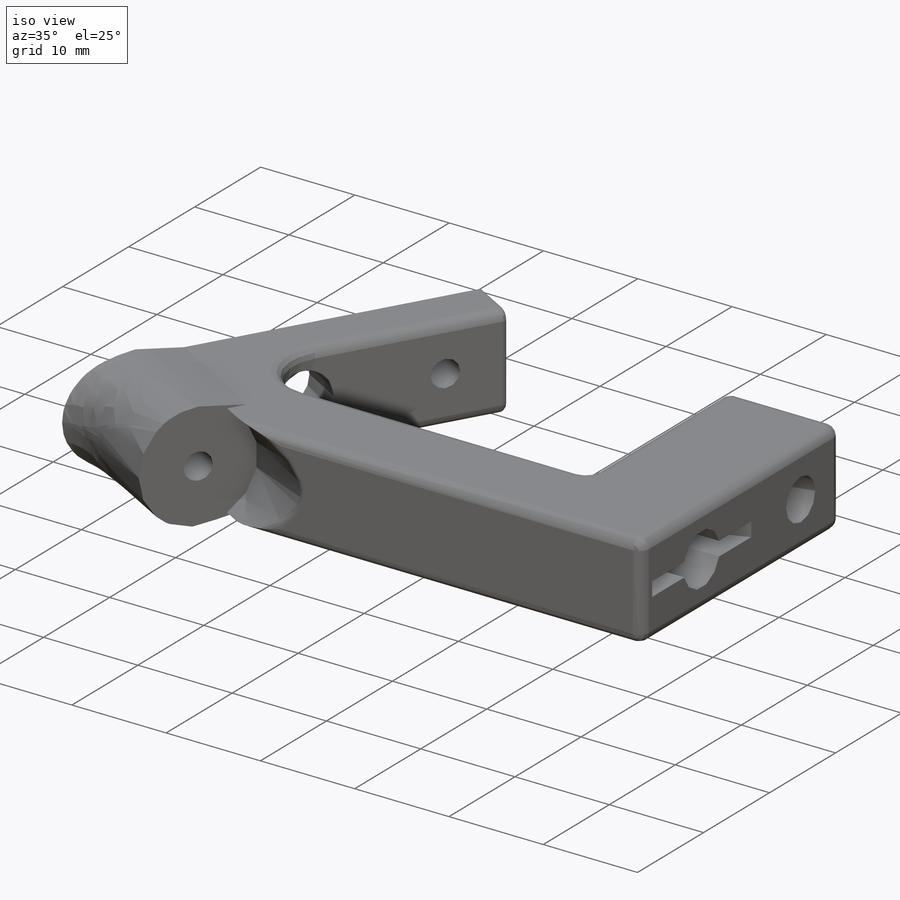
[diagram: iso view]
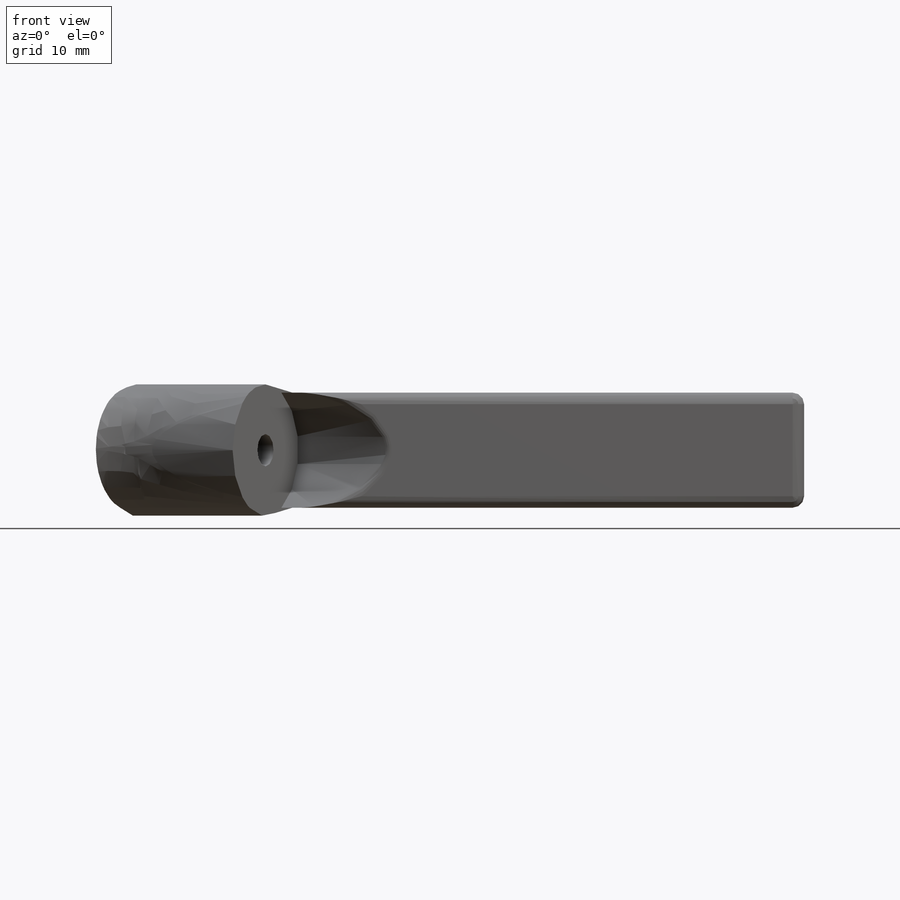
[diagram: front view]
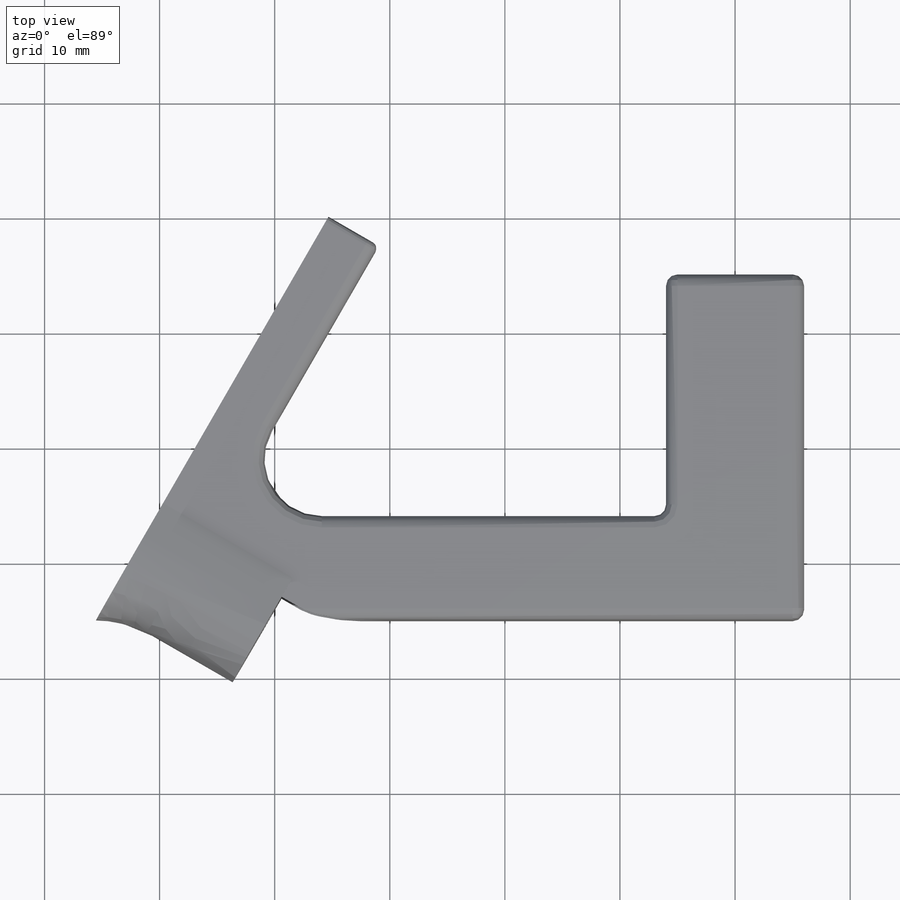
[diagram: top view]
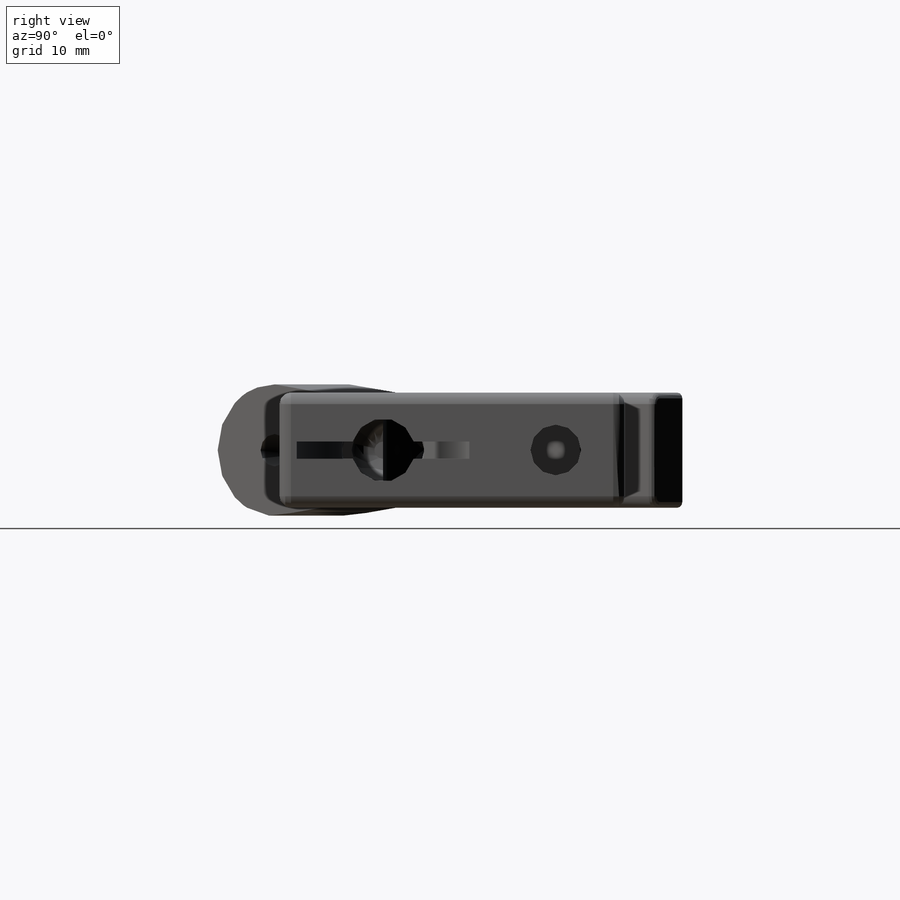
[diagram: right view]
SOLIDWORKS PART (.sldprt)
format: sldprt  version: not decoded by parser v0  size: 558,592 bytes
history: native  units: mm
features: sketch x11, fillet x8, cut_extrude x6, extrude x2, material x1, plane x1 (+12 scaffold rows collapsed)
feature tree (41):
  scaffold x12  (default folders/planes/origin — collapsed)
  material  "Material <not specified>"
  sketch  "Sketch1"  dims[c1.D1=12.0mm c1.D2=30.0mm c1.D3=~21.510476mm c2.D3=30.0deg c2.D4=5.0mm c2.D5=25.0mm c2.D6=9.0mm c3.D5=5.0mm c3.D7=25.0mm]
  extrude  "Boss-Extrude1"  Depth=10mm
  sketch  "Sketch2"  dims[D1=2.81mm D2=7.0mm D3=6.0mm]
  cut_extrude  "Cut-Extrude1"  [1 undecoded]
  sketch  "Sketch3"  dims[D1=6.0mm D2=18.0mm D3=6.0mm]
  cut_extrude  "Cut-Extrude2"  [1 undecoded]
  sketch  "Sketch4"  dims[D1=8.89mm]
  plane  "Plane1"
  sketch  "Sketch5"  dims[D1=11.43mm]
  cut_extrude  "Cut-Extrude3"  Depth=3mm
  sketch  "Sketch6"
  extrude  "Boss-Extrude3"  [1 undecoded]
  fillet  "Fillet1"  Radius=10mm
  fillet  "Fillet2"  Radius=5mm
  fillet  "Fillet4"  Radius=1mm
  fillet  "Fillet7"  Radius=1mm
  fillet  "Fillet11"  Radius=0.5mm
  sketch  "Sketch7"  dims[D1=4.4mm D2=5.5mm D3=15.0mm D4=8.0mm]
  cut_extrude  "Cut-Extrude4"  Depth=25mm
  sketch  "Sketch8"  dims[D1=6.0mm D2=6.0mm]
  cut_extrude  "Cut-Extrude5"  Depth=8mm
  fillet  "Fillet14"  Radius=0.25mm
  fillet  "Fillet15"  Radius=2mm
  fillet  "Fillet17"  Radius=3mm
  sketch  "Sketch9"  dims[D1=1.5mm D2=15.0mm]
  sketch  "Sketch10"
  sketch  "Sketch11"  dims[c1.D1=~5.739539mm c1.D2=2.65mm c2.D1=0.43mm c2.D2=0.83mm]
  cut_extrude  "Cut-Extrude6"  Depth=2mm
decode coverage: 22 of 27 modeling features carry decoded parameters
note: ~ marks probable driven/reference dimensions
note: 3 parameter values undecoded
summary: no parameter record found for 3 features
note: suppression state not decoded; provenance and decode notes live in map.json
